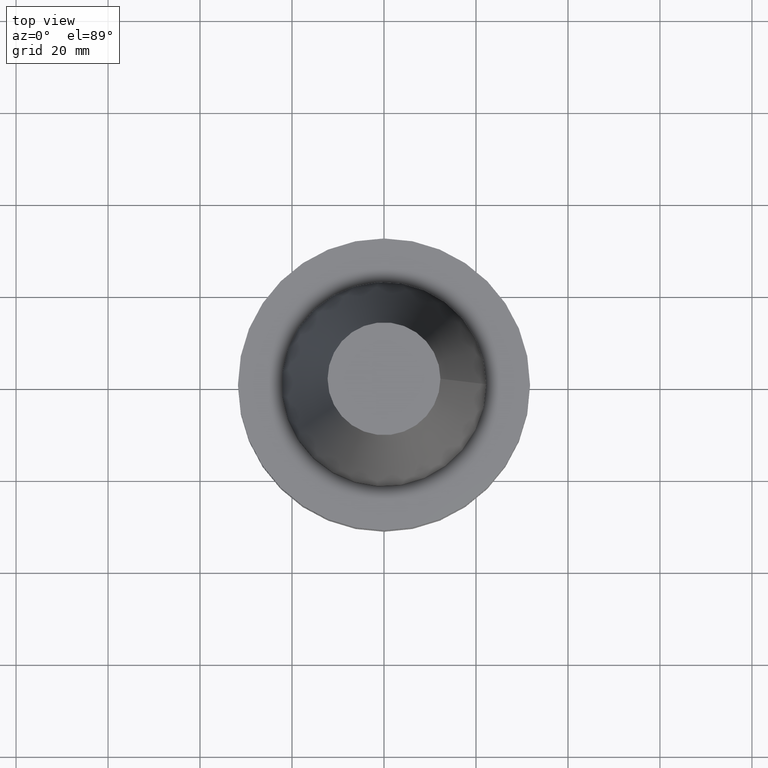
[diagram: clean part render]
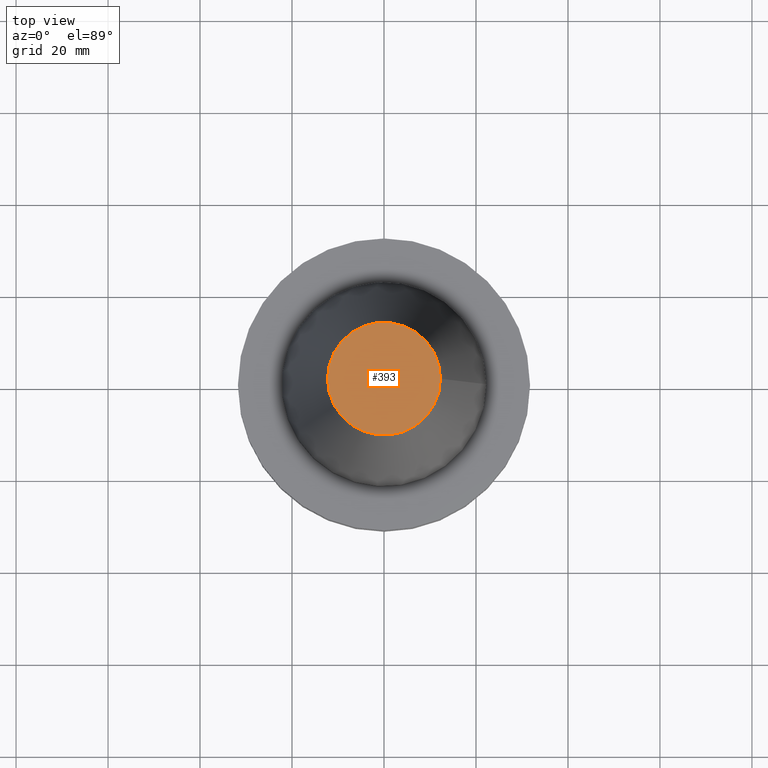
[diagram: same view with one face highlighted and labeled with its STEP entity id]
A machine part, top view. The second image highlights one B-rep face of the part: STEP entity #393.
In plain terms, the highlighted planar face has unit normal (0, 0, -1).
Its self-contained STEP definition (entity closure, byte-faithful):
#34 = DIRECTION ( 'NONE',  ( 0.000000000000000000, 0.000000000000000000, -1.000000000000000000 ) ) ;
#86 = CARTESIAN_POINT ( 'NONE',  ( 0.000000000000000000, 0.000000000000000000, 68.25000000000000000 ) ) ;
#88 = DIRECTION ( 'NONE',  ( -1.000000000000000000, 0.000000000000000000, -0.000000000000000000 ) ) ;
#149 = DIRECTION ( 'NONE',  ( 1.000000000000000000, 0.000000000000000000, 0.000000000000000000 ) ) ;
#174 = ORIENTED_EDGE ( 'NONE', *, *, #266, .T. ) ;
#209 = DIRECTION ( 'NONE',  ( -0.000000000000000000, -0.000000000000000000, 1.000000000000000000 ) ) ;
#213 = AXIS2_PLACEMENT_3D ( 'NONE', #86, #209, #149 ) ;
#244 = CARTESIAN_POINT ( 'NONE',  ( 0.000000000000000000, 12.27178102086201150, 68.25000000000000000 ) ) ;
#245 = AXIS2_PLACEMENT_3D ( 'NONE', #244, #34, #88 ) ;
#255 = CARTESIAN_POINT ( 'NONE',  ( 12.27178102086201150, 0.000000000000000000, 68.25000000000000000 ) ) ;
#258 = EDGE_LOOP ( 'NONE', ( #174 ) ) ;
#266 = EDGE_CURVE ( 'NONE', #281, #281, #319, .T. ) ;
#281 = VERTEX_POINT ( 'NONE', #255 ) ;
#319 = CIRCLE ( 'NONE', #213, 12.27178102086201150 ) ;
#368 = FACE_OUTER_BOUND ( 'NONE', #258, .T. ) ;
#393 = ADVANCED_FACE ( 'NONE', ( #368 ), #395, .F. ) ;
#395 = PLANE ( 'NONE',  #245 ) ;